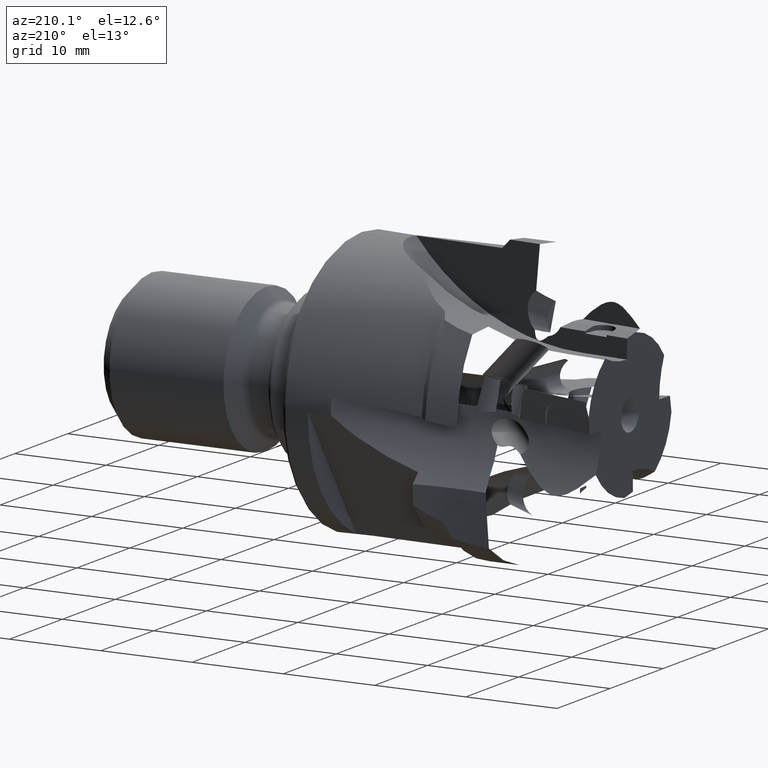
[diagram: clean part render]
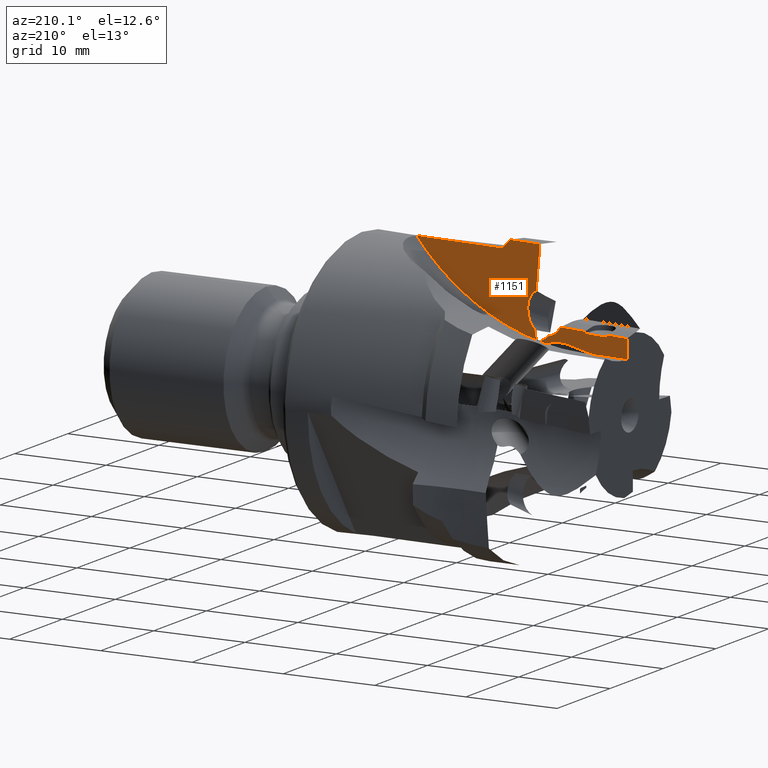
[diagram: same view with one face highlighted and labeled with its STEP entity id]
A machine part, auxiliary view. The second image highlights one B-rep face of the part: STEP entity #1151.
In plain terms, the highlighted planar face has unit normal (0.0872, 0.9962, 0).
Its self-contained STEP definition (entity closure, byte-faithful):
#16 = VERTEX_POINT ( 'NONE', #1912 ) ;
#17 = CARTESIAN_POINT ( 'NONE',  ( 15.11675241060165200, -0.6800380464480499900, 14.79268444070118900 ) ) ;
#56 = ORIENTED_EDGE ( 'NONE', *, *, #487, .F. ) ;
#79 = EDGE_CURVE ( 'NONE', #2455, #5023, #2046, .T. ) ;
#180 = CARTESIAN_POINT ( 'NONE',  ( 25.30076740495740900, -1.571023907632205500, 14.41464130256622400 ) ) ;
#215 = CARTESIAN_POINT ( 'NONE',  ( 11.17888856650988500, -0.3355196015814060400, 14.08966992103013600 ) ) ;
#236 = CARTESIAN_POINT ( 'NONE',  ( 6.235640340118845200, 0.09695857922244688300, 5.499999999999998200 ) ) ;
#237 =( BOUNDED_CURVE ( )  B_SPLINE_CURVE ( 3, ( #3224, #2821, #3644, #1204 ),
 .UNSPECIFIED., .F., .F. ) 
 B_SPLINE_CURVE_WITH_KNOTS ( ( 4, 4 ),
 ( 1.591858325451338100, 1.611396082644747300 ),
 .UNSPECIFIED. ) 
 CURVE ( )  GEOMETRIC_REPRESENTATION_ITEM ( )  RATIONAL_B_SPLINE_CURVE ( ( 1.000000000000000000, 0.9999681899232943900, 0.9999681899232943900, 1.000000000000000000 ) ) 
 REPRESENTATION_ITEM ( '' )  );
#256 = CARTESIAN_POINT ( 'NONE',  ( 11.63695221761232700, -0.3755949782261581200, 4.459439173209059200 ) ) ;
#323 = CARTESIAN_POINT ( 'NONE',  ( 11.48435617047449500, -0.3622445540027319800, 10.85471978513043500 ) ) ;
#396 = CARTESIAN_POINT ( 'NONE',  ( 10.74606613845631200, -0.2976525458069490000, 6.145718054356580100 ) ) ;
#487 = EDGE_CURVE ( 'NONE', #4428, #1179, #2420, .T. ) ;
#563 = EDGE_CURVE ( 'NONE', #4874, #1427, #2286, .T. ) ;
#572 = ORIENTED_EDGE ( 'NONE', *, *, #3037, .F. ) ;
#573 = CARTESIAN_POINT ( 'NONE',  ( 3.398452847222772600, 0.3451803211483919200, 5.459237136606703600 ) ) ;
#588 = ORIENTED_EDGE ( 'NONE', *, *, #4243, .F. ) ;
#629 = CARTESIAN_POINT ( 'NONE',  ( 11.31895880554991700, -0.3477741595947684800, 12.37530605726134100 ) ) ;
#644 = DIRECTION ( 'NONE',  ( -0.9961946980917455500, 0.08715574274765841600, 2.114623818126046600E-016 ) ) ;
#665 = ORIENTED_EDGE ( 'NONE', *, *, #3650, .T. ) ;
#707 = DIRECTION ( 'NONE',  ( 0.08715574274765841600, 0.9961946980917455500, 2.526887531205084700E-016 ) ) ;
#714 = CARTESIAN_POINT ( 'NONE',  ( 5.888684540139300000, 0.1273132784652251700, 5.495015164872432600 ) ) ;
#742 = VERTEX_POINT ( 'NONE', #3009 ) ;
#754 = LINE ( 'NONE', #236, #1260 ) ;
#791 = CARTESIAN_POINT ( 'NONE',  ( 11.62523974052522600, -0.3745702692592312600, 6.824573099116400400 ) ) ;
#798 = VECTOR ( 'NONE', #990, 1000.000000000000200 ) ;
#806 = CARTESIAN_POINT ( 'NONE',  ( 10.40289439580355300, -0.2676289086823953100, 6.353127541817182900 ) ) ;
#879 = EDGE_CURVE ( 'NONE', #16, #3036, #237, .T. ) ;
#897 = DIRECTION ( 'NONE',  ( 0.9960926771666104300, -0.08714681707326667200, 0.01431121130629163000 ) ) ;
#990 = DIRECTION ( 'NONE',  ( -0.01425675282659839100, 0.001247304251018282000, 0.9998975893715048600 ) ) ;
#1037 = CARTESIAN_POINT ( 'NONE',  ( 11.37986333896505200, -0.3531026158259332700, 11.61325731197390700 ) ) ;
#1043 =( BOUNDED_CURVE ( )  B_SPLINE_CURVE ( 3, ( #3957, #3542, #1931, #1545 ),
 .UNSPECIFIED., .F., .F. ) 
 B_SPLINE_CURVE_WITH_KNOTS ( ( 4, 4 ),
 ( 0.6479165078507956900, 1.354180149680312500 ),
 .UNSPECIFIED. ) 
 CURVE ( )  GEOMETRIC_REPRESENTATION_ITEM ( )  RATIONAL_B_SPLINE_CURVE ( ( 1.000000000000000000, 0.9588628088372669300, 0.9588628088372669300, 1.000000000000000000 ) ) 
 REPRESENTATION_ITEM ( '' )  );
#1049 = CARTESIAN_POINT ( 'NONE',  ( 3.371175098690702800, 0.3475668149114584700, 7.372362469733915600 ) ) ;
#1062 = VERTEX_POINT ( 'NONE', #1049 ) ;
#1081 = B_SPLINE_CURVE_WITH_KNOTS ( 'NONE', 3,
 ( #1428, #5086, #2257, #5104, #2656, #215, #3057, #629, #3465, #1037, #3880, #1472, #4290 ),
 .UNSPECIFIED., .F., .F.,
 ( 4, 2, 1, 1, 1, 2, 2, 4 ),
 ( 6.162065808662627200E-005, 0.0003481592287168209900, 0.0006346977993470157000, 0.001207774940607399700, 0.002353929223128162900, 0.003500083505648926100, 0.004073160646909307500, 0.004646237788169688500 ),
 .UNSPECIFIED. ) ;
#1125 = ORIENTED_EDGE ( 'NONE', *, *, #3046, .T. ) ;
#1136 = CARTESIAN_POINT ( 'NONE',  ( 6.235640340118845200, 0.09695857922244688300, 30.50000000000000000 ) ) ;
#1151 = ADVANCED_FACE ( 'NONE', ( #4450 ), #3938, .T. ) ;
#1154 = CARTESIAN_POINT ( 'NONE',  ( 15.42499999999999700, -0.7070062160795991300, 14.48275326760850500 ) ) ;
#1168 = DIRECTION ( 'NONE',  ( 0.9960926771666104300, -0.08714681707326667200, 0.01431121130629185400 ) ) ;
#1179 = VERTEX_POINT ( 'NONE', #5210 ) ;
#1185 = VERTEX_POINT ( 'NONE', #1154 ) ;
#1201 = CARTESIAN_POINT ( 'NONE',  ( 11.57592723737407100, -0.3702559842634189400, 6.526026554447815500 ) ) ;
#1204 = CARTESIAN_POINT ( 'NONE',  ( 14.50000000000000200, -0.6260792023181197500, 15.41228892255867300 ) ) ;
#1218 = CARTESIAN_POINT ( 'NONE',  ( 10.09334700075920400, -0.2405470207920358800, 6.604310212356879500 ) ) ;
#1249 =( BOUNDED_CURVE ( )  B_SPLINE_CURVE ( 3, ( #2998, #3820, #4226, #1812 ),
 .UNSPECIFIED., .F., .F. ) 
 B_SPLINE_CURVE_WITH_KNOTS ( ( 4, 4 ),
 ( 5.216025808565349900, 6.106190064375665500 ),
 .UNSPECIFIED. ) 
 CURVE ( )  GEOMETRIC_REPRESENTATION_ITEM ( )  RATIONAL_B_SPLINE_CURVE ( ( 1.000000000000000000, 0.9350502064987686900, 0.9350502064987686900, 1.000000000000000000 ) ) 
 REPRESENTATION_ITEM ( '' )  );
#1260 = VECTOR ( 'NONE', #644, 1000.000000000000100 ) ;
#1267 = AXIS2_PLACEMENT_3D ( 'NONE', #2727, #707, #3548 ) ;
#1387 = LINE ( 'NONE', #714, #2534 ) ;
#1414 = CARTESIAN_POINT ( 'NONE',  ( 15.42499999999999700, -0.7070062160795991300, 14.48275326760850500 ) ) ;
#1425 = EDGE_CURVE ( 'NONE', #4986, #3620, #1043, .T. ) ;
#1427 = VERTEX_POINT ( 'NONE', #4338 ) ;
#1428 = CARTESIAN_POINT ( 'NONE',  ( 11.05701801409097300, -0.3248573098271064200, 15.42157880141498400 ) ) ;
#1472 = CARTESIAN_POINT ( 'NONE',  ( 11.44138459169711400, -0.3584850280058947100, 11.04300027550868700 ) ) ;
#1480 = VECTOR ( 'NONE', #4441, 1000.000000000000100 ) ;
#1542 = ORIENTED_EDGE ( 'NONE', *, *, #2425, .T. ) ;
#1545 = CARTESIAN_POINT ( 'NONE',  ( 12.36639698346547100, -0.4394131259066319500, 8.274801109077776200 ) ) ;
#1568 = CARTESIAN_POINT ( 'NONE',  ( 0.9999999999999991100, 0.5550177552818601500, 5.499999999999999100 ) ) ;
#1575 = DIRECTION ( 'NONE',  ( 0.9961946980917454300, -0.08715574274765837400, 0.0000000000000000000 ) ) ;
#1635 = CARTESIAN_POINT ( 'NONE',  ( 11.46948328354611300, -0.3609433450026209900, 6.239666377574086400 ) ) ;
#1660 = VERTEX_POINT ( 'NONE', #3886 ) ;
#1690 = CARTESIAN_POINT ( 'NONE',  ( 10.09334700075920400, -0.2405470207920358800, 6.604310212356879500 ) ) ;
#1812 = CARTESIAN_POINT ( 'NONE',  ( 10.09334700075920400, -0.2405470207920358800, 6.604310212356879500 ) ) ;
#1912 = CARTESIAN_POINT ( 'NONE',  ( 11.05701801409097300, -0.3248573098271064200, 15.42157880141498400 ) ) ;
#1931 = CARTESIAN_POINT ( 'NONE',  ( 12.27056837784896000, -0.4310292092736926500, 7.773569444458183300 ) ) ;
#2015 = CARTESIAN_POINT ( 'NONE',  ( 6.205462953172980400, 0.09959875847504465200, 7.616491520032862000 ) ) ;
#2037 = CARTESIAN_POINT ( 'NONE',  ( 11.32493602163475700, -0.3482970982416445100, 6.098472990970536900 ) ) ;
#2046 =( BOUNDED_CURVE ( )  B_SPLINE_CURVE ( 3, ( #2754, #4785, #5198, #323 ),
 .UNSPECIFIED., .F., .F. ) 
 B_SPLINE_CURVE_WITH_KNOTS ( ( 4, 4 ),
 ( 1.354180149680312800, 2.595089911844521000 ),
 .UNSPECIFIED. ) 
 CURVE ( )  GEOMETRIC_REPRESENTATION_ITEM ( )  RATIONAL_B_SPLINE_CURVE ( ( 1.000000000000000000, 0.8757427137110145300, 0.8757427137110145300, 1.000000000000000000 ) ) 
 REPRESENTATION_ITEM ( '' )  );
#2093 = LINE ( 'NONE', #4968, #2160 ) ;
#2160 = VECTOR ( 'NONE', #897, 1000.000000000000100 ) ;
#2257 = CARTESIAN_POINT ( 'NONE',  ( 11.08549824200031100, -0.3273490069038108600, 15.23257830218750000 ) ) ;
#2286 = LINE ( 'NONE', #2015, #1480 ) ;
#2377 = CARTESIAN_POINT ( 'NONE',  ( 6.205462953172980400, 0.09959875847504465200, 7.616491520032862000 ) ) ;
#2420 = CIRCLE ( 'NONE', #3458, 25.00000000000000700 ) ;
#2425 = EDGE_CURVE ( 'NONE', #3036, #1185, #3414, .T. ) ;
#2427 = CARTESIAN_POINT ( 'NONE',  ( 11.18234026368843500, -0.3358215859544467800, 6.047106323325480500 ) ) ;
#2450 = ORIENTED_EDGE ( 'NONE', *, *, #79, .T. ) ;
#2455 = VERTEX_POINT ( 'NONE', #4089 ) ;
#2534 = VECTOR ( 'NONE', #5183, 1000.000000000000100 ) ;
#2583 = VECTOR ( 'NONE', #3077, 1000.000000000000200 ) ;
#2621 = CARTESIAN_POINT ( 'NONE',  ( 22.01709323702926800, -1.283739643225574100, 14.44595185953367500 ) ) ;
#2646 = LINE ( 'NONE', #256, #2583 ) ;
#2656 = CARTESIAN_POINT ( 'NONE',  ( 11.12441150822130200, -0.3307534765589133000, 14.75636654676886100 ) ) ;
#2721 = CARTESIAN_POINT ( 'NONE',  ( 1.000000000000000000, 0.5550177552818610400, -2.089977490107710400E-015 ) ) ;
#2727 = CARTESIAN_POINT ( 'NONE',  ( 6.235640340118845200, 0.09695857922244688300, 5.499999999999998200 ) ) ;
#2754 = CARTESIAN_POINT ( 'NONE',  ( 12.42708641582120800, -0.4447227632335829000, 8.592237275541650700 ) ) ;
#2818 = CARTESIAN_POINT ( 'NONE',  ( 11.64077748388415900, -0.3759296456599142100, 7.024658777297835500 ) ) ;
#2821 = CARTESIAN_POINT ( 'NONE',  ( 12.20500619294704400, -0.4252932613387837000, 15.41946310668371500 ) ) ;
#2835 = CARTESIAN_POINT ( 'NONE',  ( 10.93194296207388500, -0.3139146606856945100, 6.070406528180324600 ) ) ;
#2865 = CARTESIAN_POINT ( 'NONE',  ( 15.42499999999999700, -0.7070062160795991300, 14.48275326760850500 ) ) ;
#2871 = CARTESIAN_POINT ( 'NONE',  ( 0.9999999999999991100, 0.5550177552818594800, 7.541702816152578300 ) ) ;
#2933 = EDGE_CURVE ( 'NONE', #4986, #3202, #5096, .T. ) ;
#2955 =( BOUNDED_CURVE ( )  B_SPLINE_CURVE ( 3, ( #1414, #4237, #2621, #180 ),
 .UNSPECIFIED., .F., .F. ) 
 B_SPLINE_CURVE_WITH_KNOTS ( ( 4, 4 ),
 ( 1.619574717204371700, 1.679355909997056100 ),
 .UNSPECIFIED. ) 
 CURVE ( )  GEOMETRIC_REPRESENTATION_ITEM ( )  RATIONAL_B_SPLINE_CURVE ( ( 1.000000000000000000, 0.9997022062552769500, 0.9997022062552769500, 1.000000000000000000 ) ) 
 REPRESENTATION_ITEM ( '' )  );
#2998 = CARTESIAN_POINT ( 'NONE',  ( 8.684068929646434400, -0.1172511658139862300, 7.652102517571012000 ) ) ;
#3003 = ORIENTED_EDGE ( 'NONE', *, *, #4210, .T. ) ;
#3009 = CARTESIAN_POINT ( 'NONE',  ( 5.861406791607231000, 0.1296997722282915200, 7.408140497999643700 ) ) ;
#3036 = VERTEX_POINT ( 'NONE', #5206 ) ;
#3037 = EDGE_CURVE ( 'NONE', #4874, #4386, #4840, .T. ) ;
#3046 = EDGE_CURVE ( 'NONE', #1660, #3166, #4502, .T. ) ;
#3057 = CARTESIAN_POINT ( 'NONE',  ( 11.25670863199388100, -0.3423279751060896400, 13.13724582138554300 ) ) ;
#3077 = DIRECTION ( 'NONE',  ( 0.1877597424387456600, -0.01642684892993786400, 0.9820776128970504200 ) ) ;
#3166 = VERTEX_POINT ( 'NONE', #3269 ) ;
#3202 = VERTEX_POINT ( 'NONE', #1690 ) ;
#3204 = CARTESIAN_POINT ( 'NONE',  ( 11.63441358357471100, -0.3753728765270263900, 6.924582493831749700 ) ) ;
#3224 = CARTESIAN_POINT ( 'NONE',  ( 11.05701801409097300, -0.3248573098271064200, 15.42157880141498400 ) ) ;
#3239 = CARTESIAN_POINT ( 'NONE',  ( 10.65711187817387200, -0.2898700564598993300, 6.194632139169100600 ) ) ;
#3259 = CARTESIAN_POINT ( 'NONE',  ( 14.50000000000000200, -0.6260792023181197500, 15.41228892255867300 ) ) ;
#3269 = CARTESIAN_POINT ( 'NONE',  ( 8.684068929646434400, -0.1172511658139862300, 7.652102517571012000 ) ) ;
#3293 = ORIENTED_EDGE ( 'NONE', *, *, #2933, .F. ) ;
#3311 = EDGE_CURVE ( 'NONE', #1062, #742, #2093, .T. ) ;
#3323 = CARTESIAN_POINT ( 'NONE',  ( 11.48435617047449500, -0.3622445540027319800, 10.85471978513043500 ) ) ;
#3406 = VECTOR ( 'NONE', #1168, 1000.000000000000100 ) ;
#3414 = B_SPLINE_CURVE_WITH_KNOTS ( 'NONE', 3,
 ( #3259, #4071, #17, #2865 ),
 .UNSPECIFIED., .F., .F.,
 ( 4, 4 ),
 ( 2.840021481105828100E-007, 0.001314137386426577700 ),
 .UNSPECIFIED. ) ;
#3446 = EDGE_CURVE ( 'NONE', #4428, #4386, #754, .T. ) ;
#3458 = AXIS2_PLACEMENT_3D ( 'NONE', #1136, #3982, #1575 ) ;
#3465 = CARTESIAN_POINT ( 'NONE',  ( 11.36564353788203300, -0.3518585444335707300, 11.80385099539012100 ) ) ;
#3542 = CARTESIAN_POINT ( 'NONE',  ( 12.01831835386440000, -0.4089601918009009900, 7.338977439478211900 ) ) ;
#3548 = DIRECTION ( 'NONE',  ( -0.9961946980917455500, 0.08715574274765841600, 0.0000000000000000000 ) ) ;
#3620 = VERTEX_POINT ( 'NONE', #3815 ) ;
#3642 = CARTESIAN_POINT ( 'NONE',  ( 11.59577505093846000, -0.3719924429460789700, 6.624818942293570600 ) ) ;
#3644 = CARTESIAN_POINT ( 'NONE',  ( 13.35270336325175400, -0.5257037529012276200, 15.41636638189122600 ) ) ;
#3650 = EDGE_CURVE ( 'NONE', #1185, #1179, #2955, .T. ) ;
#3653 = CARTESIAN_POINT ( 'NONE',  ( 10.24653119156092500, -0.2539489009185786400, 6.476564774662939800 ) ) ;
#3686 = ORIENTED_EDGE ( 'NONE', *, *, #3703, .F. ) ;
#3703 = EDGE_CURVE ( 'NONE', #16, #5023, #1081, .T. ) ;
#3756 = EDGE_CURVE ( 'NONE', #3620, #2455, #2646, .T. ) ;
#3815 = CARTESIAN_POINT ( 'NONE',  ( 12.36639698346547100, -0.4394131259066319500, 8.274801109077776200 ) ) ;
#3820 = CARTESIAN_POINT ( 'NONE',  ( 8.987353553897087000, -0.1437851322576404500, 7.084205297988738400 ) ) ;
#3857 = EDGE_CURVE ( 'NONE', #1660, #742, #1387, .T. ) ;
#3880 = CARTESIAN_POINT ( 'NONE',  ( 11.41508174376466800, -0.3561838269933665400, 11.23262022181123300 ) ) ;
#3886 = CARTESIAN_POINT ( 'NONE',  ( 5.858507153193436100, 0.1299534577178234100, 7.611506684905296400 ) ) ;
#3937 = ORIENTED_EDGE ( 'NONE', *, *, #563, .T. ) ;
#3938 = PLANE ( 'NONE',  #1267 ) ;
#3957 = CARTESIAN_POINT ( 'NONE',  ( 11.64077748388415900, -0.3759296456599142100, 7.024658777297835500 ) ) ;
#3982 = DIRECTION ( 'NONE',  ( -0.08715574274765840200, -0.9961946980917455500, -0.0000000000000000000 ) ) ;
#3994 = DIRECTION ( 'NONE',  ( 0.0000000000000000000, 2.536539831064598600E-016, -1.000000000000000000 ) ) ;
#4045 = ORIENTED_EDGE ( 'NONE', *, *, #3311, .T. ) ;
#4049 = CARTESIAN_POINT ( 'NONE',  ( 11.51328305904557500, -0.3647753288237794400, 6.335127757393054900 ) ) ;
#4071 = CARTESIAN_POINT ( 'NONE',  ( 14.80841392772139800, -0.6530619246672456600, 15.10252454035847900 ) ) ;
#4089 = CARTESIAN_POINT ( 'NONE',  ( 12.42708641582120800, -0.4447227632335829000, 8.592237275541650700 ) ) ;
#4210 = EDGE_CURVE ( 'NONE', #3166, #3202, #1249, .T. ) ;
#4218 = ORIENTED_EDGE ( 'NONE', *, *, #879, .T. ) ;
#4226 = CARTESIAN_POINT ( 'NONE',  ( 9.489743001835472900, -0.1877385136272966800, 6.710680861214548500 ) ) ;
#4237 = CARTESIAN_POINT ( 'NONE',  ( 18.72419016277264000, -0.9956479541384540800, 14.46866261100082500 ) ) ;
#4243 = EDGE_CURVE ( 'NONE', #1062, #1427, #5261, .T. ) ;
#4290 = CARTESIAN_POINT ( 'NONE',  ( 11.48435617047449500, -0.3622445540027319800, 10.85471978513043500 ) ) ;
#4338 = CARTESIAN_POINT ( 'NONE',  ( 3.368275460276910000, 0.3478205004009897700, 7.575728656639567400 ) ) ;
#4386 = VERTEX_POINT ( 'NONE', #1568 ) ;
#4428 = VERTEX_POINT ( 'NONE', #5207 ) ;
#4441 = DIRECTION ( 'NONE',  ( 0.9960926771666104300, -0.08714681707326667200, 0.01431121130629185400 ) ) ;
#4448 = CARTESIAN_POINT ( 'NONE',  ( 11.36608263592700400, -0.3518969605347100900, 6.129217478170952300 ) ) ;
#4450 = FACE_OUTER_BOUND ( 'NONE', #4659, .T. ) ;
#4502 = LINE ( 'NONE', #2377, #3406 ) ;
#4533 = CARTESIAN_POINT ( 'NONE',  ( 11.64077748388415900, -0.3759296456599142100, 7.024658777297835500 ) ) ;
#4589 = ORIENTED_EDGE ( 'NONE', *, *, #1425, .T. ) ;
#4659 = EDGE_LOOP ( 'NONE', ( #3686, #4218, #1542, #665, #56, #5209, #572, #3937, #588, #4045, #4841, #1125, #3003, #3293, #4589, #4892, #2450 ) ) ;
#4772 = VECTOR ( 'NONE', #3994, 1000.000000000000000 ) ;
#4785 = CARTESIAN_POINT ( 'NONE',  ( 12.60347940255468100, -0.4601551498982386900, 9.514861055767088500 ) ) ;
#4840 = LINE ( 'NONE', #2721, #4772 ) ;
#4841 = ORIENTED_EDGE ( 'NONE', *, *, #3857, .F. ) ;
#4861 = CARTESIAN_POINT ( 'NONE',  ( 11.23280794282043600, -0.3402369357529682600, 6.057308629576925600 ) ) ;
#4874 = VERTEX_POINT ( 'NONE', #2871 ) ;
#4892 = ORIENTED_EDGE ( 'NONE', *, *, #3756, .T. ) ;
#4968 = CARTESIAN_POINT ( 'NONE',  ( 6.208362591586775300, 0.09934507298551338600, 7.413125333127210200 ) ) ;
#4986 = VERTEX_POINT ( 'NONE', #4533 ) ;
#5023 = VERTEX_POINT ( 'NONE', #3323 ) ;
#5086 = CARTESIAN_POINT ( 'NONE',  ( 11.08320147208218600, -0.3271480655732421100, 15.32845109954439900 ) ) ;
#5096 = B_SPLINE_CURVE_WITH_KNOTS ( 'NONE', 3,
 ( #2818, #3204, #791, #3642, #1201, #4049, #1635, #4448, #2037, #4861, #2427, #5274, #2835, #396, #3239, #806, #3653, #1218 ),
 .UNSPECIFIED., .F., .F.,
 ( 4, 2, 2, 2, 2, 2, 2, 2, 4 ),
 ( 0.008477072994377955400, 0.008777090800490145900, 0.009077108606602334700, 0.009377126412714525300, 0.009527135315770618800, 0.009677144218826712300, 0.009977162024938901100, 0.01027717983105109000, 0.01087721544327546100 ),
 .UNSPECIFIED. ) ;
#5104 = CARTESIAN_POINT ( 'NONE',  ( 11.10106362101661000, -0.3287108011112213600, 15.04209360836198400 ) ) ;
#5183 = DIRECTION ( 'NONE',  ( 0.01425675282659838800, -0.001247304251018282000, -0.9998975893715048600 ) ) ;
#5198 = CARTESIAN_POINT ( 'NONE',  ( 12.24464865215774600, -0.4287615271140066700, 10.37602818250662100 ) ) ;
#5206 = CARTESIAN_POINT ( 'NONE',  ( 14.50000000000000200, -0.6260792023181197500, 15.41228892255867300 ) ) ;
#5207 = CARTESIAN_POINT ( 'NONE',  ( 6.235640340118845200, 0.09695857922244688300, 5.499999999999998200 ) ) ;
#5209 = ORIENTED_EDGE ( 'NONE', *, *, #3446, .T. ) ;
#5210 = CARTESIAN_POINT ( 'NONE',  ( 25.30076740495740900, -1.571023907632205500, 14.41464130256622400 ) ) ;
#5261 = LINE ( 'NONE', #573, #798 ) ;
#5274 = CARTESIAN_POINT ( 'NONE',  ( 11.03140815612172800, -0.3226167375802843100, 6.042347895913541000 ) ) ;